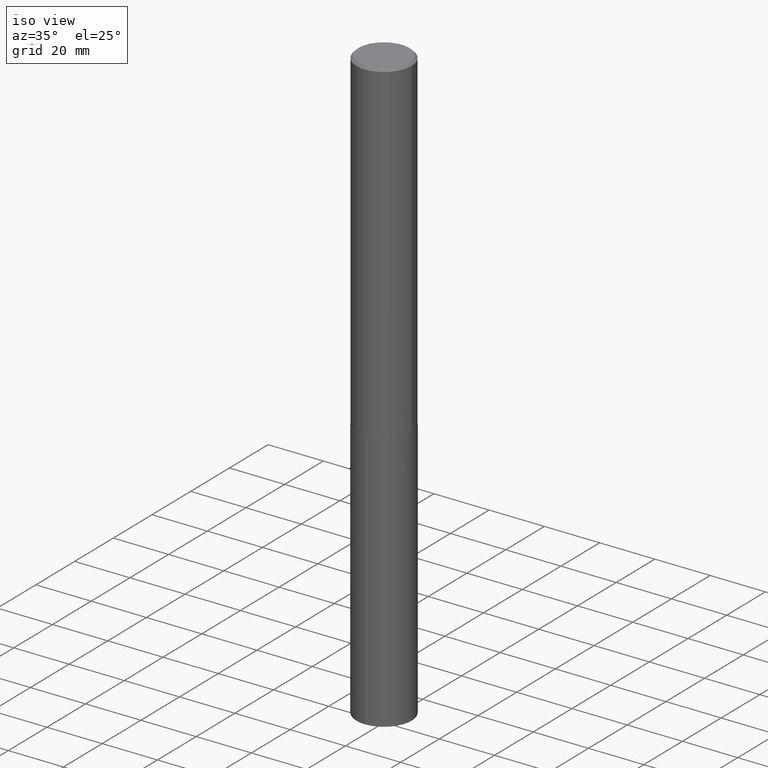
[diagram: clean part render]
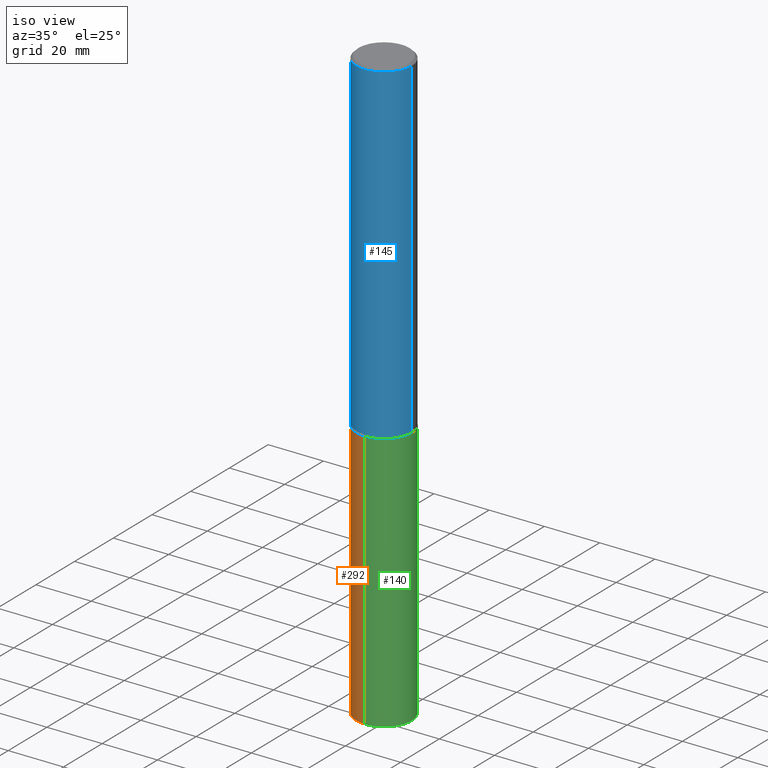
[diagram: same view with three faces highlighted in distinct colors, each labeled with its STEP entity id]
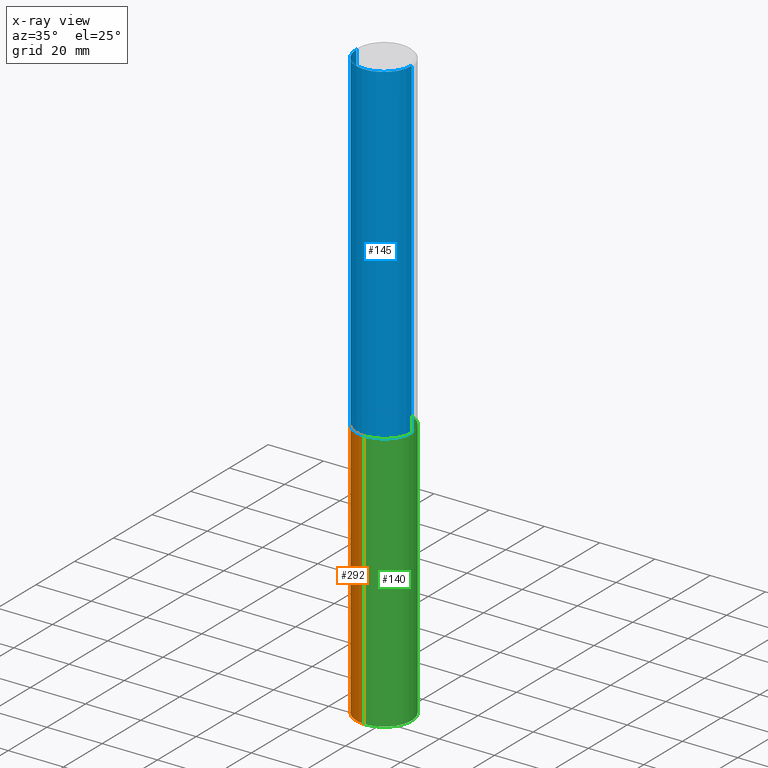
[diagram: x-ray of the same camera — body ghosted, the three highlighted faces saturated]
A machine part, iso view with three faces highlighted in distinct colors.
The next image is the same camera in x-ray (body ghosted, the three faces saturated) — at least one of them is partly hidden behind the body in this view.
Their STEP definitions:

[orange] entity #292 — the highlighted cylindrical surface (edge-blend (fillet) strip) has radius 10 mm, axis along (-0, 0, 1).
#7 = CYLINDRICAL_SURFACE ( 'NONE', #339, 0.3937000000000000499 ) ;
#11 = DIRECTION ( 'NONE',  ( -2.445333828195246450E-29, 3.491674635007138551E-15, 1.000000000000000000 ) ) ;
#18 = DIRECTION ( 'NONE',  ( -6.982962677686265133E-15, -1.000000000000000000, 4.163344669033674845E-15 ) ) ;
#22 = LINE ( 'NONE', #356, #255 ) ;
#26 = EDGE_CURVE ( 'NONE', #254, #85, #269, .T. ) ;
#32 = CARTESIAN_POINT ( 'NONE',  ( 1.162478051708167059E-28, -1.659710569232478453E-14, -4.753600000000002268 ) ) ;
#48 = CARTESIAN_POINT ( 'NONE',  ( -2.749192406204966465E-15, -0.3937000000000166477, -4.753600000000000492 ) ) ;
#62 = EDGE_LOOP ( 'NONE', ( #210, #224, #335, #93 ) ) ;
#72 = CIRCLE ( 'NONE', #250, 0.3937000000000000499 ) ;
#85 = VERTEX_POINT ( 'NONE', #196 ) ;
#93 = ORIENTED_EDGE ( 'NONE', *, *, #252, .F. ) ;
#101 = CARTESIAN_POINT ( 'NONE',  ( 1.162478051708167059E-28, -1.659710569232478768E-14, -4.753600000000002268 ) ) ;
#125 = DIRECTION ( 'NONE',  ( -6.982962677686265133E-15, -1.000000000000000000, 4.163344669033674845E-15 ) ) ;
#134 = CARTESIAN_POINT ( 'NONE',  ( -2.749192406204875746E-15, -0.3937000000000295818, -8.464600000000000790 ) ) ;
#151 = DIRECTION ( 'NONE',  ( -6.982962677686265133E-15, -1.000000000000000000, 2.775563112689116301E-15 ) ) ;
#167 = AXIS2_PLACEMENT_3D ( 'NONE', #297, #11, #151 ) ;
#168 = VECTOR ( 'NONE', #236, 39.37007874015748143 ) ;
#169 = EDGE_CURVE ( 'NONE', #275, #281, #22, .T. ) ;
#193 = CIRCLE ( 'NONE', #167, 0.3937000000000000499 ) ;
#196 = CARTESIAN_POINT ( 'NONE',  ( 2.797406750687722257E-15, 0.3936999999999834521, -4.753600000000004044 ) ) ;
#210 = ORIENTED_EDGE ( 'NONE', *, *, #26, .F. ) ;
#224 = ORIENTED_EDGE ( 'NONE', *, *, #244, .T. ) ;
#236 = DIRECTION ( 'NONE',  ( -2.445333828195246450E-29, 3.491674635007138551E-15, 1.000000000000000000 ) ) ;
#243 = DIRECTION ( 'NONE',  ( -2.445333828195246450E-29, 3.491674635007138551E-15, 1.000000000000000000 ) ) ;
#244 = EDGE_CURVE ( 'NONE', #254, #275, #193, .T. ) ;
#250 = AXIS2_PLACEMENT_3D ( 'NONE', #101, #270, #18 ) ;
#252 = EDGE_CURVE ( 'NONE', #85, #281, #72, .T. ) ;
#254 = VERTEX_POINT ( 'NONE', #301 ) ;
#255 = VECTOR ( 'NONE', #243, 39.37007874015748143 ) ;
#269 = LINE ( 'NONE', #272, #168 ) ;
#270 = DIRECTION ( 'NONE',  ( -2.445333828195246450E-29, 3.491674635007138551E-15, 1.000000000000000000 ) ) ;
#272 = CARTESIAN_POINT ( 'NONE',  ( 2.797406750687630749E-15, 0.3936999999999834521, -4.753600000000004044 ) ) ;
#275 = VERTEX_POINT ( 'NONE', #134 ) ;
#281 = VERTEX_POINT ( 'NONE', #48 ) ;
#287 = FACE_OUTER_BOUND ( 'NONE', #62, .T. ) ;
#292 = ADVANCED_FACE ( 'NONE', ( #287 ), #7, .T. ) ;
#297 = CARTESIAN_POINT ( 'NONE',  ( 2.069941435351422877E-28, -2.955471026283627536E-14, -8.464600000000002566 ) ) ;
#301 = CARTESIAN_POINT ( 'NONE',  ( 2.797406750687676109E-15, 0.3936999999999704625, -8.464600000000004343 ) ) ;
#322 = DIRECTION ( 'NONE',  ( -2.445333828195246450E-29, 3.491674635007138551E-15, 1.000000000000000000 ) ) ;
#335 = ORIENTED_EDGE ( 'NONE', *, *, #169, .T. ) ;
#339 = AXIS2_PLACEMENT_3D ( 'NONE', #32, #322, #125 ) ;
#356 = CARTESIAN_POINT ( 'NONE',  ( -2.749192406204966465E-15, -0.3937000000000166477, -4.753600000000000492 ) ) ;

[blue] entity #145 — the highlighted cylindrical surface (edge-blend (fillet) strip) has radius 10 mm, axis along (-0, 0, 1).
#33 = AXIS2_PLACEMENT_3D ( 'NONE', #357, #76, #157 ) ;
#44 = EDGE_CURVE ( 'NONE', #313, #63, #260, .T. ) ;
#47 = LINE ( 'NONE', #265, #310 ) ;
#53 = DIRECTION ( 'NONE',  ( 1.000000000000000000, -6.982962677686261977E-15, 0.000000000000000000 ) ) ;
#54 = ORIENTED_EDGE ( 'NONE', *, *, #141, .T. ) ;
#57 = VERTEX_POINT ( 'NONE', #202 ) ;
#63 = VERTEX_POINT ( 'NONE', #257 ) ;
#76 = DIRECTION ( 'NONE',  ( -2.445468806185136597E-29, 3.491481338843145583E-15, 1.000000000000000000 ) ) ;
#81 = LINE ( 'NONE', #133, #142 ) ;
#84 = DIRECTION ( 'NONE',  ( 1.000000000000000000, -6.982962677686266711E-15, 4.876176775795935793E-29 ) ) ;
#86 = AXIS2_PLACEMENT_3D ( 'NONE', #184, #118, #53 ) ;
#108 = CYLINDRICAL_SURFACE ( 'NONE', #354, 0.3937000000000003830 ) ;
#110 = FACE_OUTER_BOUND ( 'NONE', #337, .T. ) ;
#118 = DIRECTION ( 'NONE',  ( -2.445468806185136597E-29, 3.491481338843145583E-15, 1.000000000000000000 ) ) ;
#133 = CARTESIAN_POINT ( 'NONE',  ( -0.3937000000000003830, 2.797406750687517153E-15, -1.936584745033358137E-29 ) ) ;
#141 = EDGE_CURVE ( 'NONE', #63, #57, #47, .T. ) ;
#142 = VECTOR ( 'NONE', #186, 39.37007874015748143 ) ;
#145 = ADVANCED_FACE ( 'NONE', ( #110 ), #108, .T. ) ;
#152 = DIRECTION ( 'NONE',  ( -2.445468806185136597E-29, 3.491481338843145583E-15, 1.000000000000000000 ) ) ;
#157 = DIRECTION ( 'NONE',  ( 1.000000000000000000, -6.982962677686266711E-15, 0.000000000000000000 ) ) ;
#160 = EDGE_CURVE ( 'NONE', #313, #366, #81, .T. ) ;
#170 = ORIENTED_EDGE ( 'NONE', *, *, #160, .F. ) ;
#184 = CARTESIAN_POINT ( 'NONE',  ( 1.162355778267857779E-28, -1.659535995165536539E-14, -4.753100000000002545 ) ) ;
#186 = DIRECTION ( 'NONE',  ( -2.445468806185136877E-29, 3.491481338843145188E-15, 1.000000000000000000 ) ) ;
#189 = CIRCLE ( 'NONE', #33, 0.3937000000000001054 ) ;
#202 = CARTESIAN_POINT ( 'NONE',  ( 0.3937000000000001054, -2.858301198043932712E-15, -0.03125000000000014572 ) ) ;
#235 = CARTESIAN_POINT ( 'NONE',  ( 0.000000000000000000, 0.000000000000000000, 0.000000000000000000 ) ) ;
#240 = DIRECTION ( 'NONE',  ( -2.445468806185136877E-29, 3.491481338843145188E-15, 1.000000000000000000 ) ) ;
#247 = CARTESIAN_POINT ( 'NONE',  ( -0.3937000000000001054, -5.554827621059586937E-15, -0.03125000000000014572 ) ) ;
#256 = EDGE_CURVE ( 'NONE', #366, #57, #189, .T. ) ;
#257 = CARTESIAN_POINT ( 'NONE',  ( 0.3937000000000006605, -1.934455235786044861E-14, -4.753100000000002545 ) ) ;
#260 = CIRCLE ( 'NONE', #86, 0.3937000000000006605 ) ;
#265 = CARTESIAN_POINT ( 'NONE',  ( 0.3937000000000003830, -2.749192406205085978E-15, 1.919750796630861853E-29 ) ) ;
#266 = ORIENTED_EDGE ( 'NONE', *, *, #44, .T. ) ;
#289 = CARTESIAN_POINT ( 'NONE',  ( -0.3937000000000006605, -1.379795320096784508E-14, -4.753100000000002545 ) ) ;
#306 = ORIENTED_EDGE ( 'NONE', *, *, #256, .F. ) ;
#310 = VECTOR ( 'NONE', #240, 39.37007874015748143 ) ;
#313 = VERTEX_POINT ( 'NONE', #289 ) ;
#337 = EDGE_LOOP ( 'NONE', ( #170, #266, #54, #306 ) ) ;
#354 = AXIS2_PLACEMENT_3D ( 'NONE', #235, #152, #84 ) ;
#357 = CARTESIAN_POINT ( 'NONE',  ( 7.642090019328588649E-31, -1.091087918388488171E-16, -0.03125000000000014572 ) ) ;
#366 = VERTEX_POINT ( 'NONE', #247 ) ;

[green] entity #140 — the highlighted cylindrical surface (edge-blend (fillet) strip) has radius 10 mm, axis along (-0, 0, 1).
#22 = LINE ( 'NONE', #356, #255 ) ;
#26 = EDGE_CURVE ( 'NONE', #254, #85, #269, .T. ) ;
#40 = CARTESIAN_POINT ( 'NONE',  ( 1.162478051708167059E-28, -1.659710569232478453E-14, -4.753600000000002268 ) ) ;
#48 = CARTESIAN_POINT ( 'NONE',  ( -2.749192406204966465E-15, -0.3937000000000166477, -4.753600000000000492 ) ) ;
#65 = FACE_OUTER_BOUND ( 'NONE', #124, .T. ) ;
#85 = VERTEX_POINT ( 'NONE', #196 ) ;
#102 = CIRCLE ( 'NONE', #178, 0.3937000000000000499 ) ;
#119 = DIRECTION ( 'NONE',  ( -6.982962677686265133E-15, -1.000000000000000000, 2.775563112689116301E-15 ) ) ;
#124 = EDGE_LOOP ( 'NONE', ( #195, #165, #218, #286 ) ) ;
#134 = CARTESIAN_POINT ( 'NONE',  ( -2.749192406204875746E-15, -0.3937000000000295818, -8.464600000000000790 ) ) ;
#140 = ADVANCED_FACE ( 'NONE', ( #65 ), #172, .T. ) ;
#146 = DIRECTION ( 'NONE',  ( -2.445333828195246450E-29, 3.491674635007138551E-15, 1.000000000000000000 ) ) ;
#162 = DIRECTION ( 'NONE',  ( -6.982962677686265133E-15, -1.000000000000000000, 4.163344669033674845E-15 ) ) ;
#165 = ORIENTED_EDGE ( 'NONE', *, *, #26, .T. ) ;
#168 = VECTOR ( 'NONE', #236, 39.37007874015748143 ) ;
#169 = EDGE_CURVE ( 'NONE', #275, #281, #22, .T. ) ;
#171 = AXIS2_PLACEMENT_3D ( 'NONE', #262, #253, #119 ) ;
#172 = CYLINDRICAL_SURFACE ( 'NONE', #215, 0.3937000000000000499 ) ;
#178 = AXIS2_PLACEMENT_3D ( 'NONE', #180, #264, #233 ) ;
#180 = CARTESIAN_POINT ( 'NONE',  ( 1.162478051708167059E-28, -1.659710569232478768E-14, -4.753600000000002268 ) ) ;
#195 = ORIENTED_EDGE ( 'NONE', *, *, #327, .T. ) ;
#196 = CARTESIAN_POINT ( 'NONE',  ( 2.797406750687722257E-15, 0.3936999999999834521, -4.753600000000004044 ) ) ;
#206 = EDGE_CURVE ( 'NONE', #281, #85, #102, .T. ) ;
#215 = AXIS2_PLACEMENT_3D ( 'NONE', #40, #146, #162 ) ;
#218 = ORIENTED_EDGE ( 'NONE', *, *, #206, .F. ) ;
#233 = DIRECTION ( 'NONE',  ( -6.982962677686265133E-15, -1.000000000000000000, 4.163344669033674845E-15 ) ) ;
#236 = DIRECTION ( 'NONE',  ( -2.445333828195246450E-29, 3.491674635007138551E-15, 1.000000000000000000 ) ) ;
#243 = DIRECTION ( 'NONE',  ( -2.445333828195246450E-29, 3.491674635007138551E-15, 1.000000000000000000 ) ) ;
#253 = DIRECTION ( 'NONE',  ( -2.445333828195246450E-29, 3.491674635007138551E-15, 1.000000000000000000 ) ) ;
#254 = VERTEX_POINT ( 'NONE', #301 ) ;
#255 = VECTOR ( 'NONE', #243, 39.37007874015748143 ) ;
#262 = CARTESIAN_POINT ( 'NONE',  ( 2.069941435351422877E-28, -2.955471026283627536E-14, -8.464600000000002566 ) ) ;
#264 = DIRECTION ( 'NONE',  ( -2.445333828195246450E-29, 3.491674635007138551E-15, 1.000000000000000000 ) ) ;
#269 = LINE ( 'NONE', #272, #168 ) ;
#272 = CARTESIAN_POINT ( 'NONE',  ( 2.797406750687630749E-15, 0.3936999999999834521, -4.753600000000004044 ) ) ;
#275 = VERTEX_POINT ( 'NONE', #134 ) ;
#281 = VERTEX_POINT ( 'NONE', #48 ) ;
#286 = ORIENTED_EDGE ( 'NONE', *, *, #169, .F. ) ;
#301 = CARTESIAN_POINT ( 'NONE',  ( 2.797406750687676109E-15, 0.3936999999999704625, -8.464600000000004343 ) ) ;
#327 = EDGE_CURVE ( 'NONE', #275, #254, #342, .T. ) ;
#342 = CIRCLE ( 'NONE', #171, 0.3937000000000000499 ) ;
#356 = CARTESIAN_POINT ( 'NONE',  ( -2.749192406204966465E-15, -0.3937000000000166477, -4.753600000000000492 ) ) ;